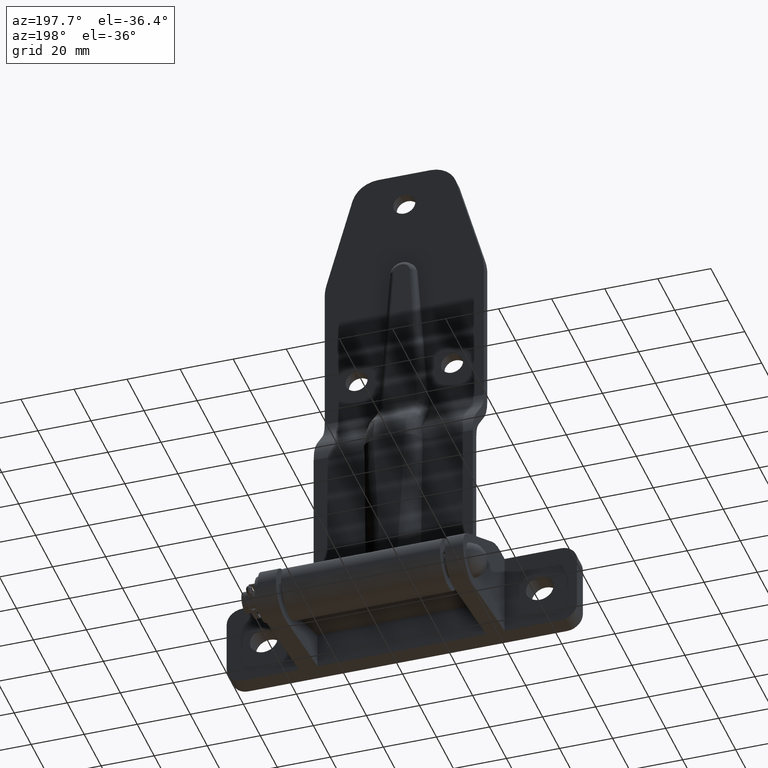
[diagram: clean part render]
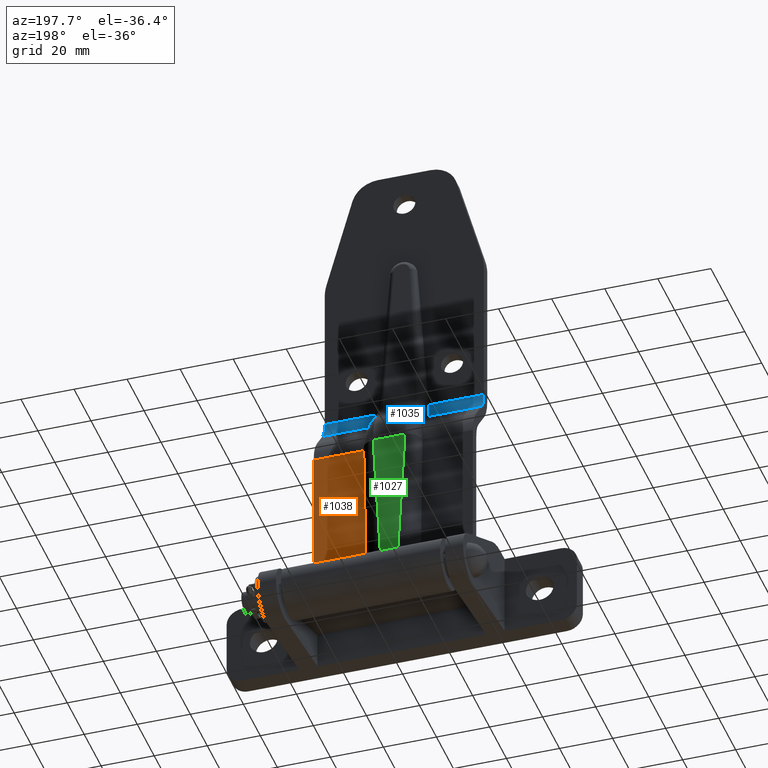
[diagram: same view with three faces highlighted in distinct colors, each labeled with its STEP entity id]
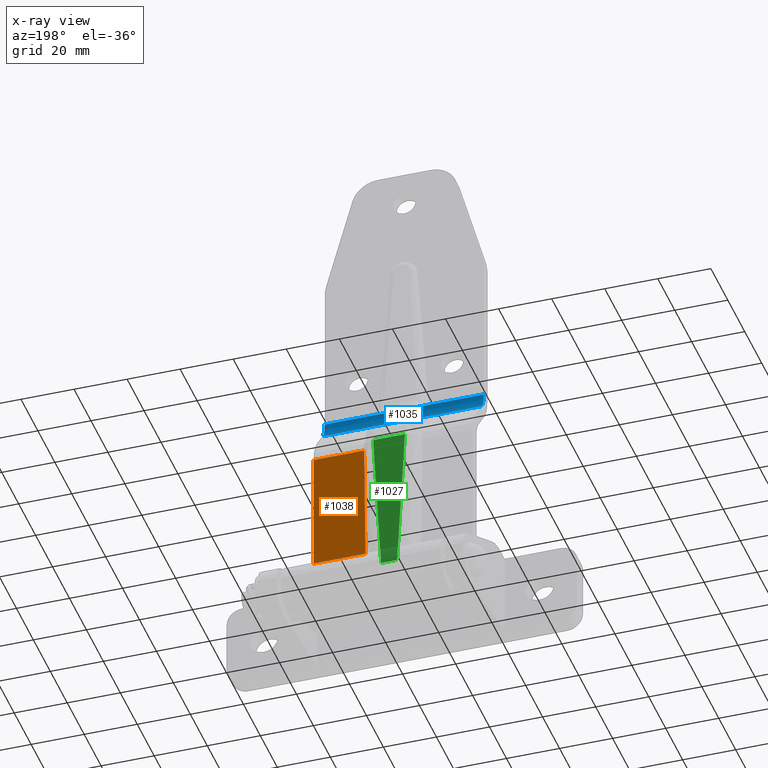
[diagram: x-ray of the same camera — body ghosted, the three highlighted faces saturated]
A machine part, auxiliary view with three faces highlighted in distinct colors.
The next image is the same camera in x-ray (body ghosted, the three faces saturated) — at least one of them is partly hidden behind the body in this view.
Their STEP definitions:

[orange] entity #1038 — the highlighted planar face has unit normal (0, -1, -0).
#46 = VECTOR ( 'NONE', #2078, 1000.000000000000000 ) ;
#49 = VECTOR ( 'NONE', #2108, 1000.000000000000000 ) ;
#121 = EDGE_CURVE ( 'NONE', #2586, #2587, #1106, .T. ) ;
#437 = CARTESIAN_POINT ( 'NONE',  ( 30.00000000000000000, -29.00000000000000400, 34.18843514518944500 ) ) ;
#438 = CARTESIAN_POINT ( 'NONE',  ( 30.00000000000000000, -29.00000000000001100, 80.49775295649362800 ) ) ;
#456 = CARTESIAN_POINT ( 'NONE',  ( 10.48618313058487300, -29.00000000000000400, 34.18843514518944500 ) ) ;
#527 = CARTESIAN_POINT ( 'NONE',  ( 11.00000000010221000, -29.00336798054588900, 80.50353071790456700 ) ) ;
#1038 = ADVANCED_FACE ( 'NONE', ( #5193 ), #1413, .F. ) ;
#1098 = EDGE_CURVE ( 'NONE', #2605, #3042, #1760, .T. ) ;
#1099 = EDGE_CURVE ( 'NONE', #2587, #3042, #2076, .T. ) ;
#1102 = EDGE_CURVE ( 'NONE', #2586, #2605, #2106, .T. ) ;
#1106 = LINE ( 'NONE', #1107, #5257 ) ;
#1107 = CARTESIAN_POINT ( 'NONE',  ( 30.00000000000000000, -29.00000000000000700, 34.18843514518944500 ) ) ;
#1108 = DIRECTION ( 'NONE',  ( 0.0000000000000000000, -7.491898209536389700E-017, 1.000000000000000000 ) ) ;
#1413 = PLANE ( 'NONE',  #5179 ) ;
#1414 = CARTESIAN_POINT ( 'NONE',  ( 30.00000000000000000, -29.00000000000000700, 34.18843514518944500 ) ) ;
#1415 = DIRECTION ( 'NONE',  ( 0.0000000000000000000, -1.000000000000000000, -7.491898209536389700E-017 ) ) ;
#1416 = DIRECTION ( 'NONE',  ( 0.0000000000000000000, 7.491898209536389700E-017, -1.000000000000000000 ) ) ;
#1760 = B_SPLINE_CURVE_WITH_KNOTS ( 'NONE', 3,
 ( #2062, #2066, #2067, #2068, #2069, #2070, #2071, #2072, #2073, #2074 ),
 .UNSPECIFIED., .F., .F.,
 ( 4, 2, 2, 2, 4 ),
 ( 0.0000000000000000000, 0.01157858582483680700, 0.02315717164967361400, 0.03473575747451042300, 0.04631434329934722800 ),
 .UNSPECIFIED. ) ;
#2062 = CARTESIAN_POINT ( 'NONE',  ( 10.48618313058487300, -29.00000000000000400, 34.18843514518944500 ) ) ;
#2066 = CARTESIAN_POINT ( 'NONE',  ( 10.54011350628235100, -28.99999999999999300, 38.04761364420328800 ) ) ;
#2067 = CARTESIAN_POINT ( 'NONE',  ( 10.61828149486598600, -29.00000000000001100, 41.90636404720969200 ) ) ;
#2068 = CARTESIAN_POINT ( 'NONE',  ( 10.77013656560514400, -28.99999999999999600, 49.62394123366966200 ) ) ;
#2069 = CARTESIAN_POINT ( 'NONE',  ( 10.84292190907827300, -29.00000000000001800, 53.48275898019393500 ) ) ;
#2070 = CARTESIAN_POINT ( 'NONE',  ( 10.94654739144594700, -29.00000000000001400, 61.20078364135559200 ) ) ;
#2071 = CARTESIAN_POINT ( 'NONE',  ( 10.97663776936173700, -29.00000000000000000, 65.05999751228438300 ) ) ;
#2072 = CARTESIAN_POINT ( 'NONE',  ( 11.00200116785309500, -29.00000000000000700, 72.77874829000262500 ) ) ;
#2073 = CARTESIAN_POINT ( 'NONE',  ( 10.99999999999746000, -29.00000000000001400, 76.63825990667957900 ) ) ;
#2074 = CARTESIAN_POINT ( 'NONE',  ( 11.00000000010221000, -29.00336798054588900, 80.50353071790456700 ) ) ;
#2076 = LINE ( 'NONE', #2077, #46 ) ;
#2077 = CARTESIAN_POINT ( 'NONE',  ( 30.00000000000000000, -29.00000000000001100, 80.49775295649362800 ) ) ;
#2078 = DIRECTION ( 'NONE',  ( -1.000000000000000000, -0.0000000000000000000, -0.0000000000000000000 ) ) ;
#2106 = LINE ( 'NONE', #2107, #49 ) ;
#2107 = CARTESIAN_POINT ( 'NONE',  ( 30.00000000000000000, -29.00000000000000400, 34.18843514518944500 ) ) ;
#2108 = DIRECTION ( 'NONE',  ( -1.000000000000000000, -0.0000000000000000000, -0.0000000000000000000 ) ) ;
#2586 = VERTEX_POINT ( 'NONE', #437 ) ;
#2587 = VERTEX_POINT ( 'NONE', #438 ) ;
#2605 = VERTEX_POINT ( 'NONE', #456 ) ;
#2843 = ORIENTED_EDGE ( 'NONE', *, *, #1099, .F. ) ;
#2844 = ORIENTED_EDGE ( 'NONE', *, *, #1102, .T. ) ;
#2845 = ORIENTED_EDGE ( 'NONE', *, *, #1098, .T. ) ;
#2846 = ORIENTED_EDGE ( 'NONE', *, *, #121, .F. ) ;
#3042 = VERTEX_POINT ( 'NONE', #527 ) ;
#3312 = EDGE_LOOP ( 'NONE', ( #2844, #2845, #2843, #2846 ) ) ;
#5179 = AXIS2_PLACEMENT_3D ( 'NONE', #1414, #1415, #1416 ) ;
#5193 = FACE_OUTER_BOUND ( 'NONE', #3312, .T. ) ;
#5257 = VECTOR ( 'NONE', #1108, 1000.000000000000000 ) ;

[blue] entity #1035 — the highlighted cylindrical surface (edge-blend (fillet) strip) has radius 11 mm, axis along (-1, -0, -0).
#105 = EDGE_CURVE ( 'NONE', #2589, #2976, #4177, .T. ) ;
#244 = AXIS2_PLACEMENT_3D ( 'NONE', #2026, #2030, #2031 ) ;
#440 = CARTESIAN_POINT ( 'NONE',  ( 30.00000000000000000, -39.42810697438373100, 98.38887472304027400 ) ) ;
#454 = CARTESIAN_POINT ( 'NONE',  ( -30.00000000000000000, -39.42810697438373100, 98.38887472304027400 ) ) ;
#461 = CARTESIAN_POINT ( 'NONE',  ( 30.00000000000000000, -42.00000000000000700, 105.4576096047814400 ) ) ;
#462 = CARTESIAN_POINT ( 'NONE',  ( -30.00000000000000000, -42.00000000000000700, 105.4576096047814400 ) ) ;
#675 = LINE ( 'NONE', #676, #4671 ) ;
#676 = CARTESIAN_POINT ( 'NONE',  ( 30.00000000000000000, -42.00000000000000700, 105.4576096047814400 ) ) ;
#677 = DIRECTION ( 'NONE',  ( -1.000000000000000000, -0.0000000000000000000, -0.0000000000000000000 ) ) ;
#1035 = ADVANCED_FACE ( 'NONE', ( #5171 ), #5164, .F. ) ;
#1086 = EDGE_CURVE ( 'NONE', #2603, #2977, #4211, .T. ) ;
#1403 = CARTESIAN_POINT ( 'NONE',  ( 30.00000000000000000, -31.00000000000001100, 105.4576096047814400 ) ) ;
#1404 = DIRECTION ( 'NONE',  ( -1.000000000000000000, -0.0000000000000000000, -0.0000000000000000000 ) ) ;
#1405 = DIRECTION ( 'NONE',  ( 0.0000000000000000000, 0.0000000000000000000, 1.000000000000000000 ) ) ;
#1882 = EDGE_CURVE ( 'NONE', #2589, #2603, #2500, .T. ) ;
#1944 = AXIS2_PLACEMENT_3D ( 'NONE', #4531, #4535, #4536 ) ;
#2026 = CARTESIAN_POINT ( 'NONE',  ( -30.00000000000000000, -31.00000000000001100, 105.4576096047814400 ) ) ;
#2030 = DIRECTION ( 'NONE',  ( -1.000000000000000000, 0.0000000000000000000, 0.0000000000000000000 ) ) ;
#2031 = DIRECTION ( 'NONE',  ( 0.0000000000000000000, 0.0000000000000000000, 1.000000000000000000 ) ) ;
#2500 = LINE ( 'NONE', #2501, #5108 ) ;
#2501 = CARTESIAN_POINT ( 'NONE',  ( 30.00000000000000000, -39.42810697438373100, 98.38887472304027400 ) ) ;
#2502 = DIRECTION ( 'NONE',  ( -1.000000000000000000, -0.0000000000000000000, -0.0000000000000000000 ) ) ;
#2589 = VERTEX_POINT ( 'NONE', #440 ) ;
#2603 = VERTEX_POINT ( 'NONE', #454 ) ;
#2856 = ORIENTED_EDGE ( 'NONE', *, *, #1882, .T. ) ;
#2858 = ORIENTED_EDGE ( 'NONE', *, *, #1086, .T. ) ;
#2859 = ORIENTED_EDGE ( 'NONE', *, *, #4882, .F. ) ;
#2860 = ORIENTED_EDGE ( 'NONE', *, *, #105, .F. ) ;
#2976 = VERTEX_POINT ( 'NONE', #461 ) ;
#2977 = VERTEX_POINT ( 'NONE', #462 ) ;
#3315 = EDGE_LOOP ( 'NONE', ( #2858, #2859, #2860, #2856 ) ) ;
#4177 = CIRCLE ( 'NONE', #1944, 10.99999999999999600 ) ;
#4211 = CIRCLE ( 'NONE', #244, 10.99999999999999600 ) ;
#4531 = CARTESIAN_POINT ( 'NONE',  ( 30.00000000000000000, -31.00000000000001100, 105.4576096047814400 ) ) ;
#4535 = DIRECTION ( 'NONE',  ( -1.000000000000000000, 0.0000000000000000000, 0.0000000000000000000 ) ) ;
#4536 = DIRECTION ( 'NONE',  ( 0.0000000000000000000, 0.0000000000000000000, 1.000000000000000000 ) ) ;
#4671 = VECTOR ( 'NONE', #677, 1000.000000000000000 ) ;
#4882 = EDGE_CURVE ( 'NONE', #2976, #2977, #675, .T. ) ;
#5108 = VECTOR ( 'NONE', #2502, 1000.000000000000000 ) ;
#5164 = CYLINDRICAL_SURFACE ( 'NONE', #5169, 10.99999999999999600 ) ;
#5169 = AXIS2_PLACEMENT_3D ( 'NONE', #1403, #1404, #1405 ) ;
#5171 = FACE_OUTER_BOUND ( 'NONE', #3315, .T. ) ;

[green] entity #1027 — the highlighted planar face has unit normal (0, -1, 0).
#110 = EDGE_CURVE ( 'NONE', #2996, #2999, #1745, .T. ) ;
#131 = EDGE_CURVE ( 'NONE', #2998, #2997, #1757, .T. ) ;
#481 = CARTESIAN_POINT ( 'NONE',  ( -3.000000000000000900, -24.00000000000000700, 24.99999999999999300 ) ) ;
#482 = CARTESIAN_POINT ( 'NONE',  ( 3.000000000000000900, -24.00000000000000700, 24.99999999999999300 ) ) ;
#483 = CARTESIAN_POINT ( 'NONE',  ( 5.995445910741128900, -24.00000000000000400, 80.50353071934708300 ) ) ;
#484 = CARTESIAN_POINT ( 'NONE',  ( -5.991794312473907700, -24.00000000000000000, 80.50353071934706900 ) ) ;
#749 = LINE ( 'NONE', #750, #4693 ) ;
#750 = CARTESIAN_POINT ( 'NONE',  ( 11.00000000000000000, -24.00000000000000700, 24.99999999999999300 ) ) ;
#751 = DIRECTION ( 'NONE',  ( -1.000000000000000000, -0.0000000000000000000, -0.0000000000000000000 ) ) ;
#800 = LINE ( 'NONE', #801, #4694 ) ;
#801 = CARTESIAN_POINT ( 'NONE',  ( 11.00000000000000000, -24.00000000000000000, 80.50353071934706900 ) ) ;
#802 = DIRECTION ( 'NONE',  ( -1.000000000000000000, -0.0000000000000000000, -0.0000000000000000000 ) ) ;
#1027 = ADVANCED_FACE ( 'NONE', ( #5172 ), #1339, .F. ) ;
#1133 = CARTESIAN_POINT ( 'NONE',  ( 5.995445910741128900, -24.00000000000000400, 80.50353071934708300 ) ) ;
#1137 = CARTESIAN_POINT ( 'NONE',  ( 5.999999999999998200, -24.00000000000000700, 62.00235381289806500 ) ) ;
#1138 = CARTESIAN_POINT ( 'NONE',  ( 3.000000000000000900, -24.00000000000000700, 43.50117690644903900 ) ) ;
#1139 = CARTESIAN_POINT ( 'NONE',  ( 3.000000000000000900, -24.00000000000000700, 24.99999999999999300 ) ) ;
#1339 = PLANE ( 'NONE',  #5165 ) ;
#1352 = CARTESIAN_POINT ( 'NONE',  ( 11.00000000000000000, -24.00000000000000700, 24.99999999999999300 ) ) ;
#1353 = DIRECTION ( 'NONE',  ( 0.0000000000000000000, -1.000000000000000000, 0.0000000000000000000 ) ) ;
#1354 = DIRECTION ( 'NONE',  ( 0.0000000000000000000, -0.0000000000000000000, -1.000000000000000000 ) ) ;
#1745 = B_SPLINE_CURVE_WITH_KNOTS ( 'NONE', 3,
 ( #4550, #4551, #4552, #4553 ),
 .UNSPECIFIED., .F., .F.,
 ( 4, 4 ),
 ( 0.3999999999999999100, 0.5999999999999998700 ),
 .UNSPECIFIED. ) ;
#1757 = B_SPLINE_CURVE_WITH_KNOTS ( 'NONE', 3,
 ( #1133, #1137, #1138, #1139 ),
 .UNSPECIFIED., .F., .F.,
 ( 4, 4 ),
 ( 0.4000000000000001300, 0.6000000000000000900 ),
 .UNSPECIFIED. ) ;
#2996 = VERTEX_POINT ( 'NONE', #481 ) ;
#2997 = VERTEX_POINT ( 'NONE', #482 ) ;
#2998 = VERTEX_POINT ( 'NONE', #483 ) ;
#2999 = VERTEX_POINT ( 'NONE', #484 ) ;
#3300 = EDGE_LOOP ( 'NONE', ( #3344, #3347, #3346, #3348 ) ) ;
#3344 = ORIENTED_EDGE ( 'NONE', *, *, #4907, .T. ) ;
#3346 = ORIENTED_EDGE ( 'NONE', *, *, #4910, .F. ) ;
#3347 = ORIENTED_EDGE ( 'NONE', *, *, #110, .T. ) ;
#3348 = ORIENTED_EDGE ( 'NONE', *, *, #131, .T. ) ;
#4550 = CARTESIAN_POINT ( 'NONE',  ( -3.000000000000000900, -24.00000000000000700, 24.99999999999999300 ) ) ;
#4551 = CARTESIAN_POINT ( 'NONE',  ( -3.000000000000000000, -24.00000000000000700, 43.50117690644903200 ) ) ;
#4552 = CARTESIAN_POINT ( 'NONE',  ( -5.999999999999998200, -24.00000000000000700, 62.00235381289805800 ) ) ;
#4553 = CARTESIAN_POINT ( 'NONE',  ( -5.991794312473907700, -24.00000000000000000, 80.50353071934706900 ) ) ;
#4693 = VECTOR ( 'NONE', #751, 1000.000000000000000 ) ;
#4694 = VECTOR ( 'NONE', #802, 1000.000000000000000 ) ;
#4907 = EDGE_CURVE ( 'NONE', #2997, #2996, #749, .T. ) ;
#4910 = EDGE_CURVE ( 'NONE', #2998, #2999, #800, .T. ) ;
#5165 = AXIS2_PLACEMENT_3D ( 'NONE', #1352, #1353, #1354 ) ;
#5172 = FACE_OUTER_BOUND ( 'NONE', #3300, .T. ) ;